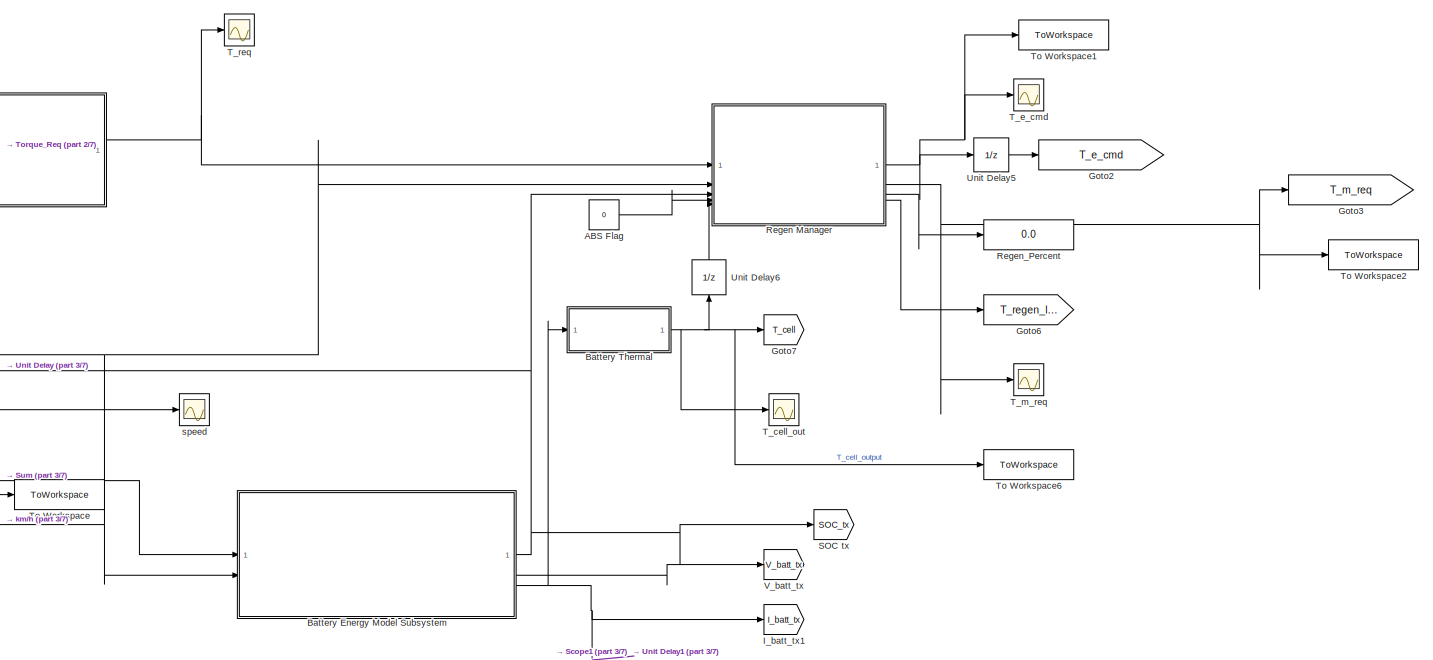
[diagram: root canvas - part 1/7, top right region]
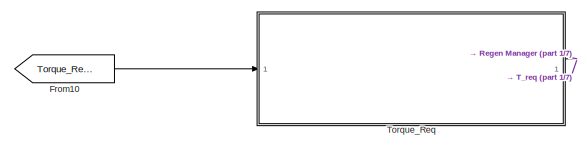
[diagram: root canvas - part 2/7, top center region]
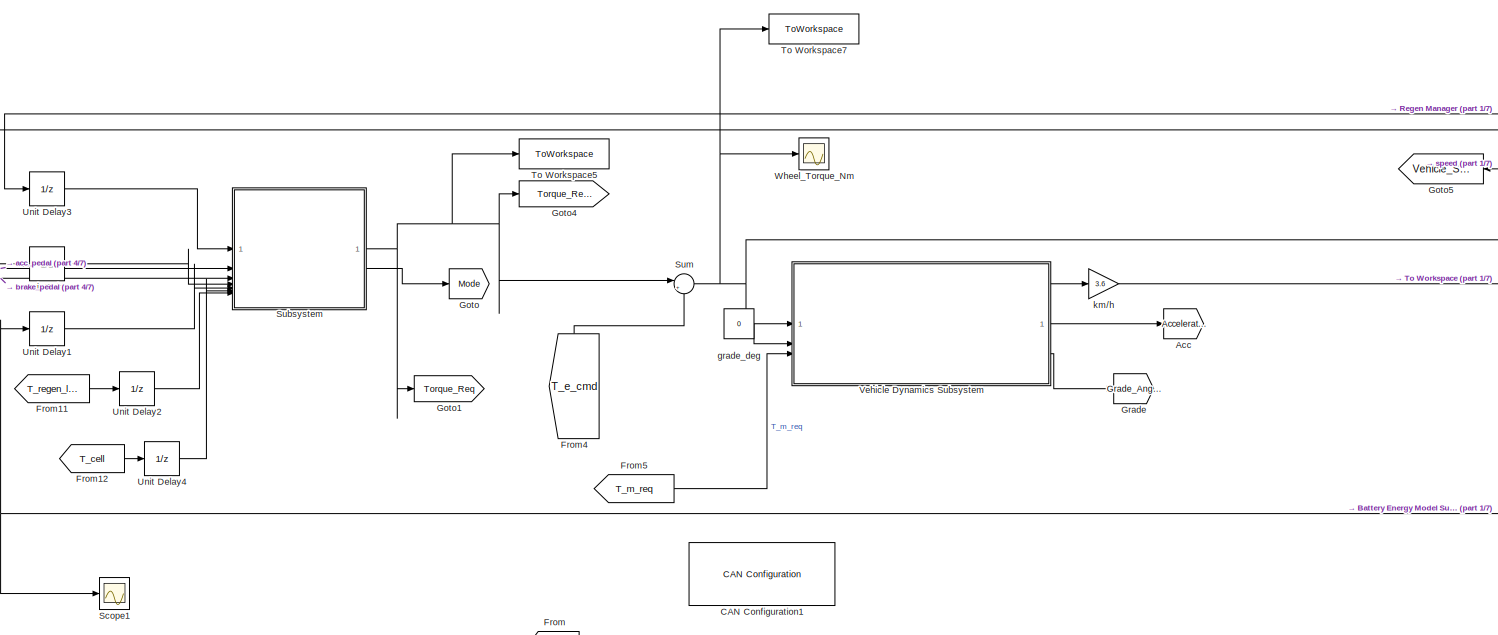
[diagram: root canvas - part 3/7, middle left region]
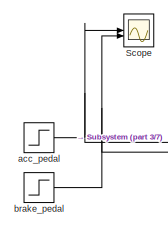
[diagram: root canvas - part 4/7, middle left region]
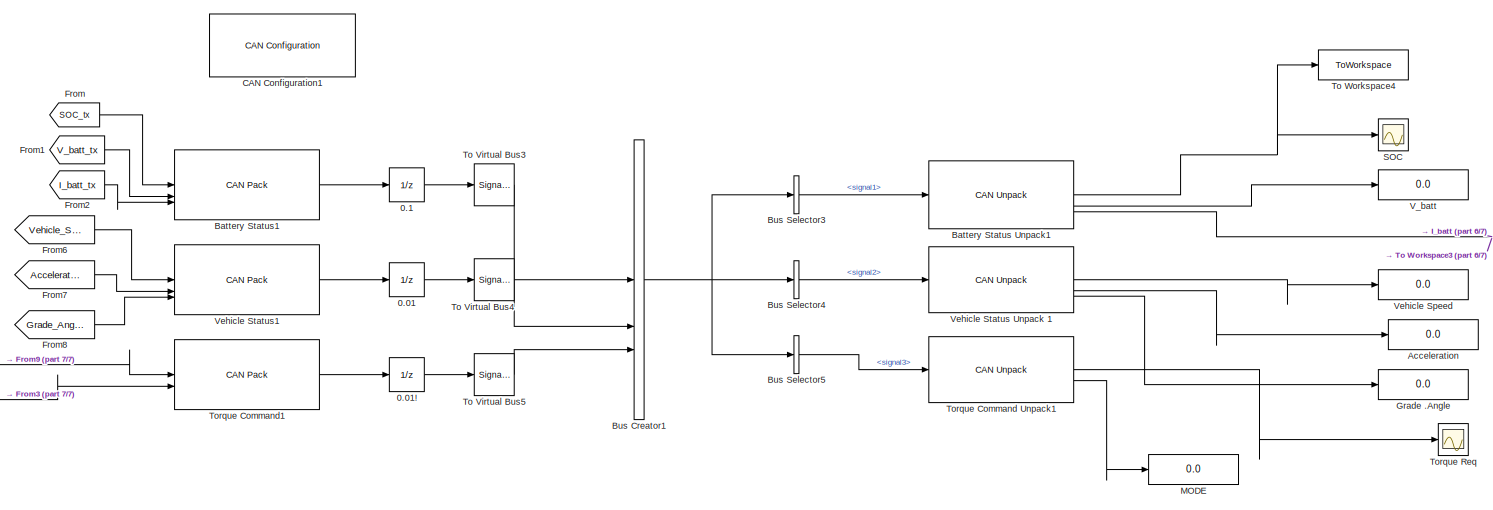
[diagram: root canvas - part 5/7, bottom center region]
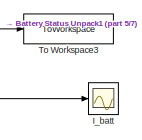
[diagram: root canvas - part 6/7, bottom right region]
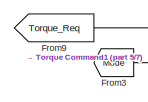
[diagram: root canvas - part 7/7, bottom left region]
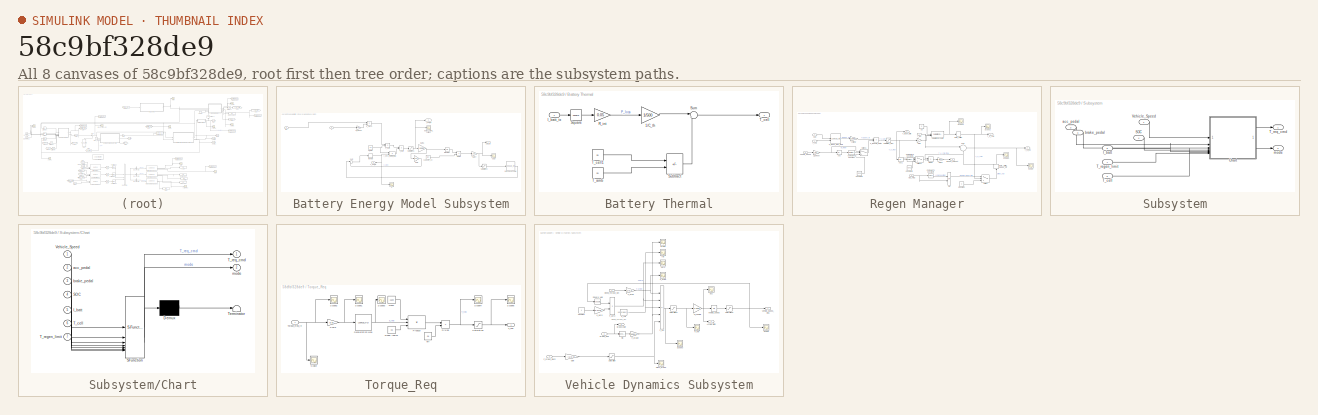
[diagram: thumbnail index - all 8 canvases of the model, root first then tree order]
MODEL slx_58c9bf328de9
KIND model
CONFIG AbsTol = auto
CONFIG EnableMultiTasking = off
CONFIG FixedStep = auto
CONFIG MaxStep = 0.1
CONFIG MinStep = 1e-4
CONFIG RelTol = 1e-2
CONFIG SampleTimeConstraint = Unconstrained
CONFIG SolverName = ode23tb
CONFIG StartTime = 0.0
CONFIG StopTime = 300
BLOCK [UnitDelay] 0.01
  HasFrameUpgradeWarning = on
  InitialCondition = 0.01
  SampleTime = -1
BLOCK [UnitDelay] 0.01!
  HasFrameUpgradeWarning = on
  InitialCondition = 0.1
  SampleTime = -1
BLOCK [UnitDelay] 0.1
  HasFrameUpgradeWarning = on
  InitialCondition = 0.1
  SampleTime = -1
BLOCK [Constant] ABS Flag
  Value = 0
BLOCK [Goto] Acc
  GotoTag = Acceleration
BLOCK [Display] Acceleration
  Decimation = 1
BLOCK [SubSystem] Battery Energy Model Subsystem
BLOCK [Lookup_n-D] Battery Energy Model Subsystem/1-D Lookup Table
  BreakpointsForDimension1 = [10 20 40 60 80 100]
  InputPortMap = u0
  InternalRulePriority = Speed
  NumberOfTableDimensions = 1
  RndMeth = Simplest
  Table = [325 332 342 350 356 360]
BLOCK [Gain] Battery Energy Model Subsystem/1//r_wheel
  Gain = 1/0.3
BLOCK [Inport] Battery Energy Model Subsystem/2
  Port = 2
BLOCK [Gain] Battery Energy Model Subsystem/Gain
  Gain = 0.05
BLOCK [Gain] Battery Energy Model Subsystem/Gain6
  Gain = -1/3600
BLOCK [Gain] Battery Energy Model Subsystem/Gain7
  Gain = 100
BLOCK [Product] Battery Energy Model Subsystem/I_batt
  Inputs = */
  RndMeth = Zero
  SaturateOnIntegerOverflow = on
BLOCK [Outport] Battery Energy Model Subsystem/I_batt_tx
  Port = 3
BLOCK [Inport] Battery Energy Model Subsystem/In1
BLOCK [Integrator] Battery Energy Model Subsystem/Integrator
  InitialCondition = 80
  LimitOutput = on
  LowerSaturationLimit = 0
  UpperSaturationLimit = 180
  ZeroCross = off
BLOCK [Memory] Battery Energy Model Subsystem/Memory
  InitialCondition = 0.01
BLOCK [Product] Battery Energy Model Subsystem/P_batt
  Inputs = */
BLOCK [Product] Battery Energy Model Subsystem/P_mech
BLOCK [Scope] Battery Energy Model Subsystem/SOC
  Floating = off
  NumInputPorts = 1
  ScopeSpecificationString = Simulink.scopes.TimeScopeBlockCfg('CurrentConfiguration', extmgr.ConfigurationSet(extmgr.Configuration('Core','General UI',true),extmgr.Configuration('Core','Source UI',true),extmgr.Configuration('Sources','WiredSimulink',true,'DataLoggingVariableName','ScopeData1'),extmgr.Configuration('Visuals','Time Domain',true,'SerializedDisplays',{struct('MinYLimReal','40.63093','MaxYLimReal','44.86822','YLa...<+1684ch>
BLOCK [Outport] Battery Energy Model Subsystem/SOC_tx
BLOCK [Saturate] Battery Energy Model Subsystem/Saturation1
  LowerLimit = -300
  UpperLimit = 300
  ZeroCross = off
BLOCK [Saturate] Battery Energy Model Subsystem/Saturation2
  LowerLimit = 0
  UpperLimit = 100
  ZeroCross = off
BLOCK [Sum] Battery Energy Model Subsystem/Sum
  Inputs = |+-
BLOCK [Scope] Battery Energy Model Subsystem/V
  Floating = off
  NumInputPorts = 1
  ScopeSpecificationString = Simulink.scopes.TimeScopeBlockCfg('CurrentConfiguration', extmgr.ConfigurationSet(extmgr.Configuration('Core','General UI',true),extmgr.Configuration('Core','Source UI',true),extmgr.Configuration('Sources','WiredSimulink',true,'DataLoggingVariableName','ScopeData1'),extmgr.Configuration('Visuals','Time Domain',true,'SerializedDisplays',{struct('MinYLimReal','-42.32209','MaxYLimReal','380.99877','Y...<+1408ch>
BLOCK [Outport] Battery Energy Model Subsystem/V_batt_tx
  NameLocation = top
  Port = 2
BLOCK [Product] Battery Energy Model Subsystem/V_term*eff_total
BLOCK [Scope] Battery Energy Model Subsystem/batt_system_current
  Floating = off
  NumInputPorts = 1
  ScopeSpecificationString = Simulink.scopes.TimeScopeBlockCfg('CurrentConfiguration', extmgr.ConfigurationSet(extmgr.Configuration('Core','General UI',true),extmgr.Configuration('Core','Source UI',true),extmgr.Configuration('Sources','WiredSimulink',true,'DataLoggingVariableName','ScopeData1'),extmgr.Configuration('Visuals','Time Domain',true,'SerializedDisplays',{struct('MinYLimReal','-144.0226','MaxYLimReal','16.00251','YL...<+1411ch>
BLOCK [Constant] Battery Energy Model Subsystem/capacity_Ah
  Value = 180
BLOCK [Product] Battery Energy Model Subsystem/divide
  Inputs = */
  RndMeth = Zero
  SaturateOnIntegerOverflow = on
BLOCK [Constant] Battery Energy Model Subsystem/eff_total
  Value = 0.9
BLOCK [Reference] Battery Status Unpack1  REF=canmsglib/CAN Unpack
  LibrarySourceBlock = canlib/CAN Unpack
  SourceBlock = canmsglib/CAN Unpack
  SourceType = CAN Unpack
BLOCK [Reference] Battery Status1  REF=canmsglib/CAN Pack
  LibrarySourceBlock = canlib/CAN Pack
  SourceBlock = canmsglib/CAN Pack
  SourceType = CAN Pack
BLOCK [SubSystem] Battery Thermal
BLOCK [Gain] Battery Thermal/1//C_th
  Gain = 1/500
BLOCK [Inport] Battery Thermal/I_batt_tx
BLOCK [Gain] Battery Thermal/R_int
  Gain = 0.05
BLOCK [Math] Battery Thermal/Square
  Operator = square
BLOCK [Sum] Battery Thermal/Subtract
  IconShape = rectangular
  Inputs = +-
BLOCK [Sum] Battery Thermal/Sum
  Inputs = |+-
BLOCK [Constant] Battery Thermal/T_amb
  Value = 20
BLOCK [Outport] Battery Thermal/T_cell
BLOCK [Constant] Battery Thermal/T_cell1
  Value = 25
BLOCK [BusCreator] Bus Creator1
  DisplayOption = bar
  InheritFromInputs = on
  Inputs = 3
BLOCK [BusSelector] Bus Selector3
  OutputSignals = signal1
BLOCK [BusSelector] Bus Selector4
  OutputSignals = signal2
BLOCK [BusSelector] Bus Selector5
  OutputSignals = signal3
BLOCK [Reference] CAN Configuration1  REF=canlib/CAN Configuration
  SourceBlock = canlib/CAN Configuration
  SourceType = CAN Configuration
BLOCK [From] From
  GotoTag = SOC_tx
BLOCK [From] From1
  GotoTag = V_batt_tx
BLOCK [From] From10
  GotoTag = Torque_Req_in
BLOCK [From] From11
  GotoTag = T_regen_limit
BLOCK [From] From12
  GotoTag = T_cell
BLOCK [From] From2
  GotoTag = I_batt_tx
BLOCK [From] From3
  GotoTag = Mode
BLOCK [From] From4
  GotoTag = T_e_cmd
  NameLocation = right
BLOCK [From] From5
  GotoTag = T_m_req
BLOCK [From] From6
  GotoTag = Vehicle_Speed
BLOCK [From] From7
  GotoTag = Acceleration
BLOCK [From] From8
  GotoTag = Grade_Angle
BLOCK [From] From9
  GotoTag = Torque_Req
BLOCK [Goto] Goto
  GotoTag = Mode
BLOCK [Goto] Goto1
  GotoTag = Torque_Req
BLOCK [Goto] Goto2
  GotoTag = T_e_cmd
BLOCK [Goto] Goto3
  GotoTag = T_m_req
BLOCK [Goto] Goto4
  GotoTag = Torque_Req_in
BLOCK [Goto] Goto5
  GotoTag = Vehicle_Speed
  NameLocation = top
BLOCK [Goto] Goto6
  GotoTag = T_regen_limit
BLOCK [Goto] Goto7
  GotoTag = T_cell
BLOCK [Goto] Grade
  GotoTag = Grade_Angle
BLOCK [Display] Grade .Angle
  Decimation = 1
BLOCK [Scope] I_batt
  Floating = off
  NumInputPorts = 1
  ScopeSpecificationString = Simulink.scopes.TimeScopeBlockCfg('CurrentConfiguration', extmgr.ConfigurationSet(extmgr.Configuration('Core','General UI',true),extmgr.Configuration('Core','Source UI',true),extmgr.Configuration('Sources','WiredSimulink',true,'DataLoggingVariableName','ScopeData3'),extmgr.Configuration('Visuals','Time Domain',true,'SerializedDisplays',{struct('MinYLimReal','-234.825','MaxYLimReal','359.425','YLab...<+1420ch>
BLOCK [Goto] I_batt_tx1
  GotoTag = I_batt_tx
BLOCK [Display] MODE
  Decimation = 1
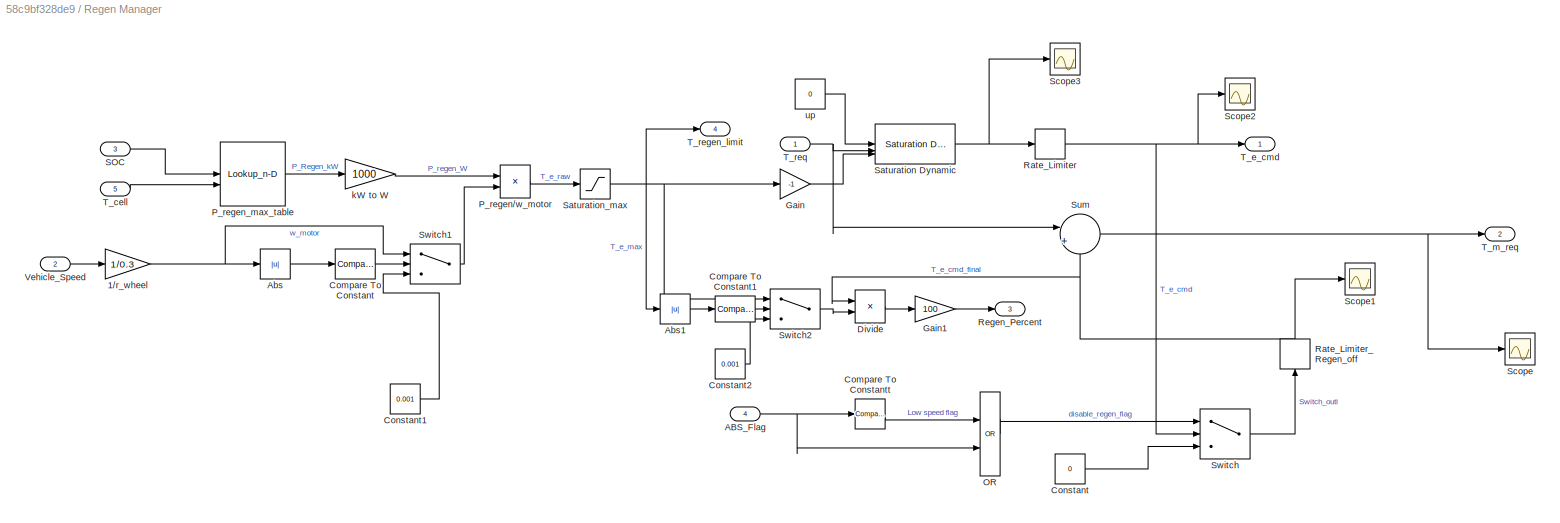
BLOCK [SubSystem] Regen Manager
BLOCK [Gain] Regen Manager/1//r_wheel
  Gain = 1/0.3
BLOCK [Inport] Regen Manager/ABS_Flag
  Port = 4
BLOCK [Abs] Regen Manager/Abs
  SaturateOnIntegerOverflow = off
  ZeroCross = off
BLOCK [Abs] Regen Manager/Abs1
  SaturateOnIntegerOverflow = off
  ZeroCross = off
BLOCK [Reference] Regen Manager/Compare To Constant  REF=simulink/Logic and Bit
Operations/Compare
To Constant
  SourceBlock = simulink/Logic and Bit\nOperations/Compare\nTo Constant
  SourceType = Compare To Constant
BLOCK [Reference] Regen Manager/Compare To Constant1  REF=simulink/Logic and Bit
Operations/Compare
To Constant
  SourceBlock = simulink/Logic and Bit\nOperations/Compare\nTo Constant
  SourceType = Compare To Constant
BLOCK [Reference] Regen Manager/Compare To Constantt  REF=simulink/Logic and Bit
Operations/Compare
To Constant
  SourceBlock = simulink/Logic and Bit\nOperations/Compare\nTo Constant
  SourceType = Compare To Constant
BLOCK [Constant] Regen Manager/Constant
  Value = 0
BLOCK [Constant] Regen Manager/Constant1
  Value = 0.001
BLOCK [Constant] Regen Manager/Constant2
  Value = 0.001
BLOCK [Product] Regen Manager/Divide
  RndMeth = Zero
  SaturateOnIntegerOverflow = on
BLOCK [Gain] Regen Manager/Gain
  Gain = -1
BLOCK [Gain] Regen Manager/Gain1
  Gain = 100
BLOCK [Logic] Regen Manager/OR
  AllPortsSameDT = off
  IconShape = distinctive
  Operator = OR
  OutDataTypeStr = boolean
BLOCK [Product] Regen Manager/P_regen//w_motor
  RndMeth = Zero
  SaturateOnIntegerOverflow = on
BLOCK [Lookup_n-D] Regen Manager/P_regen_max_table
  BreakpointsForDimension1 = [0 20 40 60 80 95 100] % SOC
  BreakpointsForDimension2 = [-10 0 10 20 30 40 50]    % T_cell
  InputPortMap = u0,u1
  InternalRulePriority = Speed
  RndMeth = Simplest
  Table = [ 5  10  15  20  25  12   0;  \n  8  15  25  35  45  20   0;  \n 12  30  45  60  70  28   0;   \n 15  40  60  80  90  35   0;   \n 15  40  60  80  90  35   0;   \n 10  30  45  60  70  28   0;   \n  5  15  25  35  45  20   0]
BLOCK [RateLimiter] Regen Manager/Rate_Limiter
  FallingSlewLimit = -3000
  RisingSlewLimit = 3000
  SampleTimeMode = inherited
BLOCK [RateLimiter] Regen Manager/Rate_Limiter_Regen_off
  FallingSlewLimit = -2000
  NameLocation = right
  RisingSlewLimit = 2000
  SampleTimeMode = inherited
BLOCK [Outport] Regen Manager/Regen_Percent
  Port = 3
BLOCK [Inport] Regen Manager/SOC
  Port = 3
BLOCK [Reference] Regen Manager/Saturation Dynamic  REF=simulink/Discontinuities/Saturation
Dynamic
  SourceBlock = simulink/Discontinuities/Saturation\nDynamic
  SourceType = Saturation Dynamic
BLOCK [Saturate] Regen Manager/Saturation_max
  LowerLimit = 0
  UpperLimit = 1500
  ZeroCross = off
BLOCK [Scope] Regen Manager/Scope
  Floating = off
  NumInputPorts = 1
  ScopeSpecificationString = Simulink.scopes.TimeScopeBlockCfg('CurrentConfiguration', extmgr.ConfigurationSet(extmgr.Configuration('Core','General UI',true),extmgr.Configuration('Core','Source UI',true),extmgr.Configuration('Sources','WiredSimulink',true,'DataLoggingVariableName','ScopeData2'),extmgr.Configuration('Visuals','Time Domain',true,'SerializedDisplays',{struct('MinYLimReal','-375.00000','MaxYLimReal','375.00000','...<+1407ch>
BLOCK [Scope] Regen Manager/Scope1
  Floating = off
  NumInputPorts = 1
  ScopeSpecificationString = Simulink.scopes.TimeScopeBlockCfg('CurrentConfiguration', extmgr.ConfigurationSet(extmgr.Configuration('Core','General UI',true),extmgr.Configuration('Core','Source UI',true),extmgr.Configuration('Sources','WiredSimulink',true,'DataLoggingVariableName','ScopeData1'),extmgr.Configuration('Visuals','Time Domain',true,'SerializedDisplays',{struct('MinYLimReal','-1.00000','MaxYLimReal','1.00000','YLab...<+1372ch>
BLOCK [Scope] Regen Manager/Scope2
  Floating = off
  NumInputPorts = 1
  ScopeSpecificationString = Simulink.scopes.TimeScopeBlockCfg('CurrentConfiguration', extmgr.ConfigurationSet(extmgr.Configuration('Core','General UI',true),extmgr.Configuration('Core','Source UI',true),extmgr.Configuration('Sources','WiredSimulink',true,'DataLoggingVariableName','ScopeData2'),extmgr.Configuration('Visuals','Time Domain',true,'SerializedDisplays',{struct('MinYLimReal','-33.75','MaxYLimReal','3.75','YLabelRea...<+1352ch>
BLOCK [Scope] Regen Manager/Scope3
  Floating = off
  NumInputPorts = 1
  ScopeSpecificationString = Simulink.scopes.TimeScopeBlockCfg('CurrentConfiguration', extmgr.ConfigurationSet(extmgr.Configuration('Core','General UI',true),extmgr.Configuration('Core','Source UI',true),extmgr.Configuration('Sources','WiredSimulink',true,'DataLoggingVariableName','ScopeData3'),extmgr.Configuration('Visuals','Time Domain',true,'SerializedDisplays',{struct('MinYLimReal','-41.20213','MaxYLimReal','4.57801','YLa...<+1381ch>
BLOCK [Sum] Regen Manager/Sum
  Inputs = |+-
BLOCK [Switch] Regen Manager/Switch
  Criteria = u2 > Threshold
  InputSameDT = off
  SaturateOnIntegerOverflow = off
BLOCK [Switch] Regen Manager/Switch1
  Criteria = u2 > Threshold
  InputSameDT = off
  SaturateOnIntegerOverflow = off
  Threshold = 0.001
BLOCK [Switch] Regen Manager/Switch2
  Criteria = u2 > Threshold
  InputSameDT = off
  SaturateOnIntegerOverflow = off
  Threshold = 0.001
BLOCK [Inport] Regen Manager/T_cell
  Port = 5
BLOCK [Outport] Regen Manager/T_e_cmd
BLOCK [Outport] Regen Manager/T_m_req
  Port = 2
BLOCK [Outport] Regen Manager/T_regen_limit
  Port = 4
BLOCK [Inport] Regen Manager/T_req
BLOCK [Inport] Regen Manager/Vehicle_Speed
  Port = 2
BLOCK [Gain] Regen Manager/kW to W
  Gain = 1000
BLOCK [Constant] Regen Manager/up
  Value = 0
BLOCK [Display] Regen_Percent
  Decimation = 1
BLOCK [Scope] SOC
  Floating = off
  NumInputPorts = 1
  ScopeSpecificationString = Simulink.scopes.TimeScopeBlockCfg('CurrentConfiguration', extmgr.ConfigurationSet(extmgr.Configuration('Core','General UI',true),extmgr.Configuration('Core','Source UI',true),extmgr.Configuration('Sources','WiredSimulink',true,'DataLoggingVariableName','ScopeData5'),extmgr.Configuration('Visuals','Time Domain',true,'SerializedDisplays',{struct('MinYLimReal','25.54737','MaxYLimReal','46.01866','YLa...<+1464ch>
BLOCK [Goto] SOC tx
  GotoTag = SOC_tx
BLOCK [Scope] Scope
  Floating = off
  NumInputPorts = 2
  ScopeSpecificationString = Simulink.scopes.TimeScopeBlockCfg('CurrentConfiguration', extmgr.ConfigurationSet(extmgr.Configuration('Core','General UI',true),extmgr.Configuration('Core','Source UI',true),extmgr.Configuration('Sources','WiredSimulink',true,'DataLoggingVariableName','ScopeData1'),extmgr.Configuration('Visuals','Time Domain',true,'SerializedDisplays',{struct('MinYLimReal','-37.5','MaxYLimReal','337.5','YLabelRea...<+1397ch>
BLOCK [Scope] Scope1
  Floating = off
  NumInputPorts = 1
  ScopeSpecificationString = Simulink.scopes.TimeScopeBlockCfg('CurrentConfiguration', extmgr.ConfigurationSet(extmgr.Configuration('Core','General UI',true),extmgr.Configuration('Core','Source UI',true),extmgr.Configuration('Sources','WiredSimulink',true,'DataLoggingVariableName','ScopeData2'),extmgr.Configuration('Visuals','Time Domain',true,'SerializedDisplays',{struct('MinYLimReal','-225.6366','MaxYLimReal','358.40407','Y...<+1403ch>
BLOCK [SubSystem] Subsystem
BLOCK [SubSystem] Subsystem/Chart
  ErrorFcn = Stateflow.Translate.translate
  PermitHierarchicalResolution = ExplicitOnly
  SFBlockType = Chart
  TreatAsAtomicUnit = on
BLOCK [Demux] Subsystem/Chart/ Demux 
  Outputs = 1
BLOCK [S-Function] Subsystem/Chart/ SFunction 
  EnableBusSupport = on
  FunctionName = sf_sfun
  PortCounts = [7 3]
  SFcnIsStateOwnerBlock = off
  SFunctionDeploymentMode = off
  Tag = Stateflow S-Function 3
BLOCK [Terminator] Subsystem/Chart/ Terminator 
BLOCK [Inport] Subsystem/Chart/I_batt
  Port = 5
BLOCK [Inport] Subsystem/Chart/SOC
  Port = 4
BLOCK [Inport] Subsystem/Chart/T_cell
  Port = 6
BLOCK [Inport] Subsystem/Chart/T_regen_limit
  Port = 7
BLOCK [Outport] Subsystem/Chart/T_req_cmd
BLOCK [Inport] Subsystem/Chart/Vehicle_Speed
BLOCK [Inport] Subsystem/Chart/acc_pedal
  Port = 2
BLOCK [Inport] Subsystem/Chart/brake_pedal
  Port = 3
BLOCK [Outport] Subsystem/Chart/mode
  Port = 2
BLOCK [Inport] Subsystem/I_batt
  Port = 5
BLOCK [Inport] Subsystem/SOC
  Port = 4
BLOCK [Inport] Subsystem/T_cell
  Port = 6
BLOCK [Inport] Subsystem/T_regen_limit
  Port = 7
BLOCK [Outport] Subsystem/T_req_cmd
BLOCK [Inport] Subsystem/Vehicle_Speed
BLOCK [Inport] Subsystem/acc_pedal
  Port = 2
BLOCK [Inport] Subsystem/brake_pedal
  Port = 3
BLOCK [Outport] Subsystem/mode
  Port = 2
BLOCK [Sum] Sum
  Inputs = |++
BLOCK [Scope] T_cell_out
  Floating = off
  NumInputPorts = 1
  ScopeSpecificationString = Simulink.scopes.TimeScopeBlockCfg('CurrentConfiguration', extmgr.ConfigurationSet(extmgr.Configuration('Core','General UI',true),extmgr.Configuration('Core','Source UI',true),extmgr.Configuration('Sources','WiredSimulink',true,'DataLoggingVariableName','ScopeData1'),extmgr.Configuration('Visuals','Time Domain',true,'SerializedDisplays',{struct('MinYLimReal','-6.125','MaxYLimReal','5.125','YLabelRe...<+1360ch>
BLOCK [Scope] T_e_cmd
  Floating = off
  NumInputPorts = 1
  ScopeSpecificationString = Simulink.scopes.TimeScopeBlockCfg('CurrentConfiguration', extmgr.ConfigurationSet(extmgr.Configuration('Core','General UI',true),extmgr.Configuration('Core','Source UI',true),extmgr.Configuration('Sources','WiredSimulink',true,'DataLoggingVariableName','ScopeData7'),extmgr.Configuration('Visuals','Time Domain',true,'SerializedDisplays',{struct('MinYLimReal','-33.75','MaxYLimReal','3.75','YLabelRea...<+1401ch>
BLOCK [Scope] T_m_req
  Floating = off
  NumInputPorts = 1
  ScopeSpecificationString = Simulink.scopes.TimeScopeBlockCfg('CurrentConfiguration', extmgr.ConfigurationSet(extmgr.Configuration('Core','General UI',true),extmgr.Configuration('Core','Source UI',true),extmgr.Configuration('Sources','WiredSimulink',true,'DataLoggingVariableName','ScopeData8'),extmgr.Configuration('Visuals','Time Domain',true,'SerializedDisplays',{struct('MinYLimReal','-375.00000','MaxYLimReal','375.00000','...<+1487ch>
BLOCK [Scope] T_req
  Floating = off
  NumInputPorts = 1
  ScopeSpecificationString = Simulink.scopes.TimeScopeBlockCfg('CurrentConfiguration', extmgr.ConfigurationSet(extmgr.Configuration('Core','General UI',true),extmgr.Configuration('Core','Source UI',true),extmgr.Configuration('Sources','WiredSimulink',true,'DataLoggingVariableName','ScopeData1'),extmgr.Configuration('Visuals','Time Domain',true,'SerializedDisplays',{struct('MinYLimReal','-375.00000','MaxYLimReal','375.00000','...<+1414ch>
BLOCK [SignalConversion] To Virtual Bus3
  ConversionOutput = Nonvirtual bus
  OverrideOpt = off
BLOCK [SignalConversion] To Virtual Bus4
  ConversionOutput = Nonvirtual bus
  OverrideOpt = off
BLOCK [SignalConversion] To Virtual Bus5
  ConversionOutput = Nonvirtual bus
  OverrideOpt = off
BLOCK [ToWorkspace] To Workspace
  FixptAsFi = on
  MaxDataPoints = inf
  SampleTime = -1
  VariableName = speed
BLOCK [ToWorkspace] To Workspace1
  FixptAsFi = on
  MaxDataPoints = inf
  SampleTime = -1
  VariableName = T_e_cmd
BLOCK [ToWorkspace] To Workspace2
  FixptAsFi = on
  MaxDataPoints = inf
  SampleTime = -1
  VariableName = T_m_req
BLOCK [ToWorkspace] To Workspace3
  FixptAsFi = on
  MaxDataPoints = inf
  SampleTime = -1
  VariableName = I_batt
BLOCK [ToWorkspace] To Workspace4
  FixptAsFi = on
  MaxDataPoints = inf
  SampleTime = -1
  VariableName = SOC
BLOCK [ToWorkspace] To Workspace5
  FixptAsFi = on
  MaxDataPoints = inf
  SampleTime = -1
  VariableName = T_req_cmd
BLOCK [ToWorkspace] To Workspace6
  FixptAsFi = on
  MaxDataPoints = inf
  SampleTime = -1
  VariableName = Tcell
BLOCK [ToWorkspace] To Workspace7
  FixptAsFi = on
  MaxDataPoints = inf
  SampleTime = -1
  VariableName = Wheel_Torque_Nm
BLOCK [Reference] Torque Command Unpack1  REF=canmsglib/CAN Unpack
  LibrarySourceBlock = canlib/CAN Unpack
  SourceBlock = canmsglib/CAN Unpack
  SourceType = CAN Unpack
BLOCK [Reference] Torque Command1  REF=canmsglib/CAN Pack
  LibrarySourceBlock = canlib/CAN Pack
  SourceBlock = canmsglib/CAN Pack
  SourceType = CAN Pack
BLOCK [Scope] Torque Req
  Floating = off
  NumInputPorts = 1
  ScopeSpecificationString = Simulink.scopes.TimeScopeBlockCfg('CurrentConfiguration', extmgr.ConfigurationSet(extmgr.Configuration('Core','General UI',true),extmgr.Configuration('Core','Source UI',true),extmgr.Configuration('Sources','WiredSimulink',true,'DataLoggingVariableName','ScopeData9'),extmgr.Configuration('Visuals','Time Domain',true,'SerializedDisplays',{struct('MinYLimReal','-215.00000','MaxYLimReal','1135.00000',...<+1467ch>
BLOCK [SubSystem] Torque_Req
BLOCK [Lookup_n-D] Torque_Req/Deceleration Map
  BreakpointsForDimension1 = [0 0.2 0.5 1.2 2.0 3.0 4.0]
  InputPortMap = u0
  InternalRulePriority = Speed
  NumberOfTableDimensions = 1
  RndMeth = Simplest
  Table = [0 10 20 40 60 80 100]
BLOCK [Product] Torque_Req/Divide
  RndMeth = Zero
  SaturateOnIntegerOverflow = on
BLOCK [Product] Torque_Req/Product
  Inputs = 3
BLOCK [Saturate] Torque_Req/Saturation
  LowerLimit = -300
  UpperLimit = 300
  ZeroCross = off
BLOCK [Gain] Torque_Req/Scale
  Gain = 0.01
BLOCK [Scope] Torque_Req/Scope
  Floating = off
  NumInputPorts = 1
  ScopeSpecificationString = Simulink.scopes.TimeScopeBlockCfg('CurrentConfiguration', extmgr.ConfigurationSet(extmgr.Configuration('Core','General UI',true),extmgr.Configuration('Core','Source UI',true),extmgr.Configuration('Sources','WiredSimulink',true,'DataLoggingVariableName','ScopeData1'),extmgr.Configuration('Visuals','Time Domain',true,'SerializedDisplays',{struct('MinYLimReal','-456.1875','MaxYLimReal','106.1875','YL...<+1411ch>
BLOCK [Scope] Torque_Req/Scope1
  Floating = off
  NumInputPorts = 1
  ScopeSpecificationString = Simulink.scopes.TimeScopeBlockCfg('CurrentConfiguration', extmgr.ConfigurationSet(extmgr.Configuration('Core','General UI',true),extmgr.Configuration('Core','Source UI',true),extmgr.Configuration('Sources','WiredSimulink',true,'DataLoggingVariableName','ScopeData1'),extmgr.Configuration('Visuals','Time Domain',true,'SerializedDisplays',{struct('MinYLimReal','-1.275','MaxYLimReal','3.475','YLabelRe...<+1385ch>
BLOCK [Scope] Torque_Req/Scope2
  Floating = off
  NumInputPorts = 1
  ScopeSpecificationString = Simulink.scopes.TimeScopeBlockCfg('CurrentConfiguration', extmgr.ConfigurationSet(extmgr.Configuration('Core','General UI',true),extmgr.Configuration('Core','Source UI',true),extmgr.Configuration('Sources','WiredSimulink',true,'DataLoggingVariableName','ScopeData2'),extmgr.Configuration('Visuals','Time Domain',true,'SerializedDisplays',{struct('MinYLimReal','-127.5','MaxYLimReal','347.5','YLabelRe...<+1362ch>
BLOCK [Scope] Torque_Req/Scope3
  Floating = off
  NumInputPorts = 1
  ScopeSpecificationString = Simulink.scopes.TimeScopeBlockCfg('CurrentConfiguration', extmgr.ConfigurationSet(extmgr.Configuration('Core','General UI',true),extmgr.Configuration('Core','Source UI',true),extmgr.Configuration('Sources','WiredSimulink',true,'DataLoggingVariableName','ScopeData3'),extmgr.Configuration('Visuals','Time Domain',true,'SerializedDisplays',{struct('MinYLimReal','-55.00000','MaxYLimReal','95.00000','YL...<+1403ch>
BLOCK [Scope] Torque_Req/Scope4
  Floating = off
  NumInputPorts = 1
  ScopeSpecificationString = Simulink.scopes.TimeScopeBlockCfg('CurrentConfiguration', extmgr.ConfigurationSet(extmgr.Configuration('Core','General UI',true),extmgr.Configuration('Core','Source UI',true),extmgr.Configuration('Sources','WiredSimulink',true,'DataLoggingVariableName','ScopeData4'),extmgr.Configuration('Visuals','Time Domain',true,'SerializedDisplays',{struct('MinYLimReal','-23760.00000','MaxYLimReal','41040.0000...<+1723ch>
BLOCK [Scope] Torque_Req/Scope5
  Floating = off
  NumInputPorts = 1
  ScopeSpecificationString = Simulink.scopes.TimeScopeBlockCfg('CurrentConfiguration', extmgr.ConfigurationSet(extmgr.Configuration('Core','General UI',true),extmgr.Configuration('Core','Source UI',true),extmgr.Configuration('Sources','WiredSimulink',true,'DataLoggingVariableName','ScopeData5'),extmgr.Configuration('Visuals','Time Domain',true,'SerializedDisplays',{struct('MinYLimReal','-375.00000','MaxYLimReal','375.00000','...<+1712ch>
BLOCK [Outport] Torque_Req/T_req
BLOCK [Inport] Torque_Req/Torque_Req_in
BLOCK [Constant] Torque_Req/eff
  Value = 0.9
BLOCK [Constant] Torque_Req/mass
  Value = 1600
BLOCK [Constant] Torque_Req/wheel radius
  Value = 0.3
BLOCK [UnitDelay] Unit Delay
  HasFrameUpgradeWarning = on
  SampleTime = 0.01
BLOCK [UnitDelay] Unit Delay1
  HasFrameUpgradeWarning = on
  SampleTime = 0.01
BLOCK [UnitDelay] Unit Delay2
  HasFrameUpgradeWarning = on
  SampleTime = 0.01
BLOCK [UnitDelay] Unit Delay3
  HasFrameUpgradeWarning = on
  SampleTime = 0.01
BLOCK [UnitDelay] Unit Delay4
  HasFrameUpgradeWarning = on
  SampleTime = 0.01
BLOCK [UnitDelay] Unit Delay5
  HasFrameUpgradeWarning = on
  SampleTime = 0.01
BLOCK [UnitDelay] Unit Delay6
  HasFrameUpgradeWarning = on
  InitialCondition = 0.01
  NameLocation = right
  SampleTime = -1
BLOCK [Display] V_batt
  Decimation = 1
BLOCK [Goto] V_batt_tx
  GotoTag = V_batt_tx
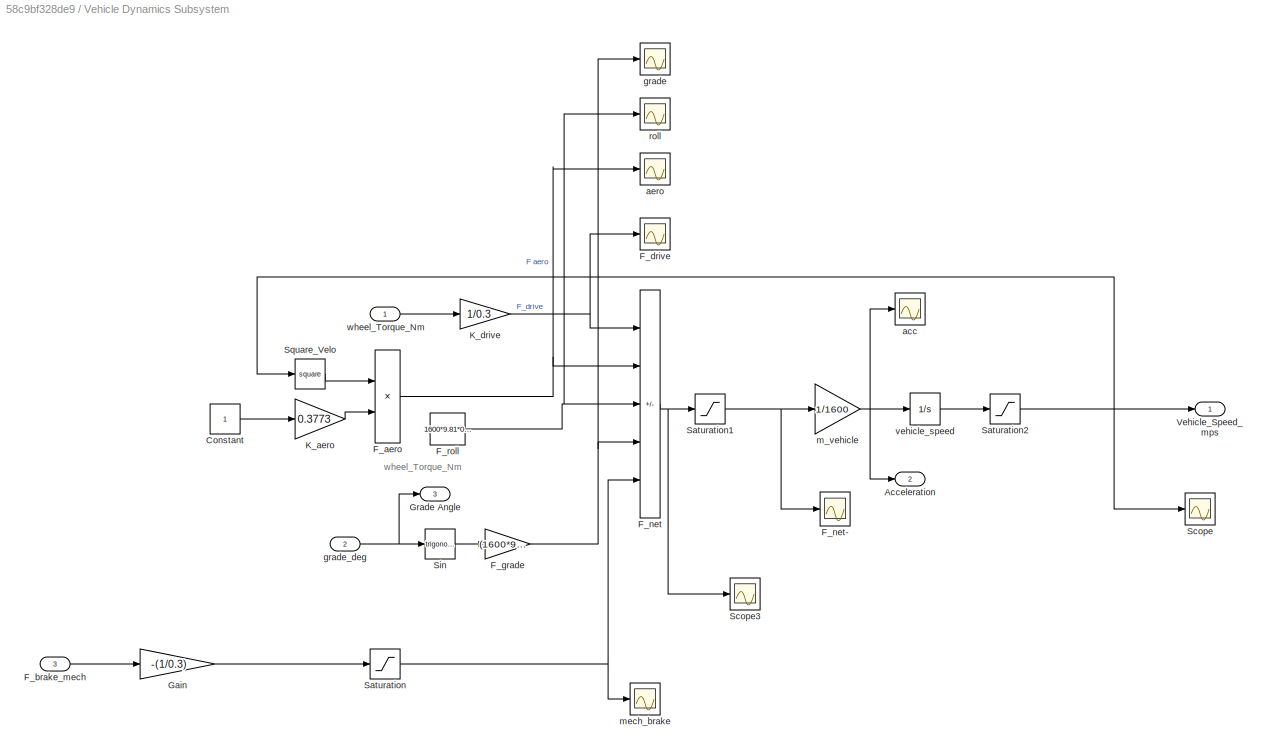
BLOCK [SubSystem] Vehicle Dynamics Subsystem
BLOCK [Outport] Vehicle Dynamics Subsystem/Acceleration
  Port = 2
BLOCK [Constant] Vehicle Dynamics Subsystem/Constant
BLOCK [Product] Vehicle Dynamics Subsystem/F_aero
BLOCK [Inport] Vehicle Dynamics Subsystem/F_brake_mech
  Port = 3
BLOCK [Scope] Vehicle Dynamics Subsystem/F_drive
  Floating = off
  NumInputPorts = 1
  ScopeSpecificationString = Simulink.scopes.TimeScopeBlockCfg('CurrentConfiguration', extmgr.ConfigurationSet(extmgr.Configuration('Core','General UI',true),extmgr.Configuration('Core','Source UI',true),extmgr.Configuration('Sources','WiredSimulink',true,'DataLoggingVariableName','ScopeData1'),extmgr.Configuration('Visuals','Time Domain',true,'SerializedDisplays',{struct('MinYLimReal','-318.75','MaxYLimReal','35.41667','YLab...<+1399ch>
BLOCK [Gain] Vehicle Dynamics Subsystem/F_grade
  Gain = (1600*9.81)/100
BLOCK [Sum] Vehicle Dynamics Subsystem/F_net
  IconShape = rectangular
  Inputs = +----
BLOCK [Scope] Vehicle Dynamics Subsystem/F_net-
  Floating = off
  NumInputPorts = 1
  ScopeSpecificationString = Simulink.scopes.TimeScopeBlockCfg('CurrentConfiguration', extmgr.ConfigurationSet(extmgr.Configuration('Core','General UI',true),extmgr.Configuration('Core','Source UI',true),extmgr.Configuration('Sources','WiredSimulink',true),extmgr.Configuration('Visuals','Time Domain',true,'SerializedDisplays',{struct('MinYLimReal','-3381.7707','MaxYLimReal','3817.85558','YLabelReal','','MinYLimMag','  0.00000...<+1420ch>
BLOCK [Constant] Vehicle Dynamics Subsystem/F_roll
  Value = 1600*9.81*0.015
BLOCK [Gain] Vehicle Dynamics Subsystem/Gain
  Gain = -(1/0.3)
BLOCK [Outport] Vehicle Dynamics Subsystem/Grade Angle
  Port = 3
BLOCK [Gain] Vehicle Dynamics Subsystem/K_aero
  Gain = 0.3773
BLOCK [Gain] Vehicle Dynamics Subsystem/K_drive
  Gain = 1/0.3
BLOCK [Saturate] Vehicle Dynamics Subsystem/Saturation
  LowerLimit = 0
  UpperLimit = 10000
  ZeroCross = off
BLOCK [Saturate] Vehicle Dynamics Subsystem/Saturation1
  LowerLimit = -20000
  UpperLimit = 20000
  ZeroCross = off
BLOCK [Saturate] Vehicle Dynamics Subsystem/Saturation2
  LowerLimit = 0
  UpperLimit = 50
  ZeroCross = off
BLOCK [Scope] Vehicle Dynamics Subsystem/Scope
  Floating = off
  NumInputPorts = 1
  ScopeSpecificationString = Simulink.scopes.TimeScopeBlockCfg('CurrentConfiguration', extmgr.ConfigurationSet(extmgr.Configuration('Core','General UI',true),extmgr.Configuration('Core','Source UI',true),extmgr.Configuration('Sources','WiredSimulink',true,'DataLoggingVariableName','ScopeData1'),extmgr.Configuration('Visuals','Time Domain',true,'SerializedDisplays',{struct('MinYLimReal','-62.5','MaxYLimReal','62.5','YLabelReal...<+1352ch>
BLOCK [Scope] Vehicle Dynamics Subsystem/Scope3
  Floating = off
  NumInputPorts = 1
  ScopeSpecificationString = Simulink.scopes.TimeScopeBlockCfg('CurrentConfiguration', extmgr.ConfigurationSet(extmgr.Configuration('Core','General UI',true),extmgr.Configuration('Core','Source UI',true),extmgr.Configuration('Sources','WiredSimulink',true,'DataLoggingVariableName','ScopeData2'),extmgr.Configuration('Visuals','Time Domain',true,'SerializedDisplays',{struct('MinYLimReal','-3381.7707','MaxYLimReal','3817.85558',...<+1417ch>
BLOCK [Trigonometry] Vehicle Dynamics Subsystem/Sin
  OutputSignalType = real
BLOCK [Math] Vehicle Dynamics Subsystem/Square_Velo
  Operator = square
BLOCK [Outport] Vehicle Dynamics Subsystem/Vehicle_Speed_mps
BLOCK [Scope] Vehicle Dynamics Subsystem/acc
  Floating = off
  NumInputPorts = 1
  ScopeSpecificationString = Simulink.scopes.TimeScopeBlockCfg('CurrentConfiguration', extmgr.ConfigurationSet(extmgr.Configuration('Core','General UI',true),extmgr.Configuration('Core','Source UI',true),extmgr.Configuration('Sources','WiredSimulink',true,'DataLoggingVariableName','ScopeData1'),extmgr.Configuration('Visuals','Time Domain',true,'SerializedDisplays',{struct('MinYLimReal','-1.5135','MaxYLimReal','0.00467','YLabe...<+1364ch>
BLOCK [Scope] Vehicle Dynamics Subsystem/aero
  Floating = off
  NumInputPorts = 1
  ScopeSpecificationString = Simulink.scopes.TimeScopeBlockCfg('CurrentConfiguration', extmgr.ConfigurationSet(extmgr.Configuration('Core','General UI',true),extmgr.Configuration('Core','Source UI',true),extmgr.Configuration('Sources','WiredSimulink',true,'DataLoggingVariableName','ScopeData1'),extmgr.Configuration('Visuals','Time Domain',true,'SerializedDisplays',{struct('MinYLimReal','-117.90625','MaxYLimReal','1061.15625',...<+1414ch>
BLOCK [Scope] Vehicle Dynamics Subsystem/grade
  Floating = off
  NumInputPorts = 1
  ScopeSpecificationString = Simulink.scopes.TimeScopeBlockCfg('CurrentConfiguration', extmgr.ConfigurationSet(extmgr.Configuration('Core','General UI',true),extmgr.Configuration('Core','Source UI',true),extmgr.Configuration('Sources','WiredSimulink',true,'DataLoggingVariableName','ScopeData3'),extmgr.Configuration('Visuals','Time Domain',true,'SerializedDisplays',{struct('MinYLimReal','-1.00000','MaxYLimReal','1.00000','YLab...<+1434ch>
BLOCK [Inport] Vehicle Dynamics Subsystem/grade_deg
  Port = 2
BLOCK [Gain] Vehicle Dynamics Subsystem/m_vehicle
  Gain = 1/1600
BLOCK [Scope] Vehicle Dynamics Subsystem/mech_brake
  Floating = off
  NumInputPorts = 1
  ScopeSpecificationString = Simulink.scopes.TimeScopeBlockCfg('CurrentConfiguration', extmgr.ConfigurationSet(extmgr.Configuration('Core','General UI',true),extmgr.Configuration('Core','Source UI',true),extmgr.Configuration('Sources','WiredSimulink',true,'DataLoggingVariableName','ScopeData3'),extmgr.Configuration('Visuals','Time Domain',true,'SerializedDisplays',{struct('MinYLimReal','-125.00000','MaxYLimReal','1125.00000',...<+1454ch>
BLOCK [Scope] Vehicle Dynamics Subsystem/roll
  Floating = off
  NumInputPorts = 1
  ScopeSpecificationString = Simulink.scopes.TimeScopeBlockCfg('CurrentConfiguration', extmgr.ConfigurationSet(extmgr.Configuration('Core','General UI',true),extmgr.Configuration('Core','Source UI',true),extmgr.Configuration('Sources','WiredSimulink',true,'DataLoggingVariableName','ScopeData2'),extmgr.Configuration('Visuals','Time Domain',true,'SerializedDisplays',{struct('MinYLimReal','135.44','MaxYLimReal','335.44','YLabelR...<+1423ch>
BLOCK [Integrator] Vehicle Dynamics Subsystem/vehicle_speed
  LimitOutput = on
  LowerSaturationLimit = 0
  UpperSaturationLimit = 50
  ZeroCross = off
BLOCK [Inport] Vehicle Dynamics Subsystem/wheel_Torque_Nm
BLOCK [Display] Vehicle Speed
  Decimation = 1
BLOCK [Reference] Vehicle Status Unpack 1  REF=canmsglib/CAN Unpack
  LibrarySourceBlock = canlib/CAN Unpack
  SourceBlock = canmsglib/CAN Unpack
  SourceType = CAN Unpack
BLOCK [Reference] Vehicle Status1  REF=canmsglib/CAN Pack
  LibrarySourceBlock = canlib/CAN Pack
  SourceBlock = canmsglib/CAN Pack
  SourceType = CAN Pack
BLOCK [Scope] Wheel_Torque_Nm
  Floating = off
  NumInputPorts = 1
  ScopeSpecificationString = Simulink.scopes.TimeScopeBlockCfg('CurrentConfiguration', extmgr.ConfigurationSet(extmgr.Configuration('Core','General UI',true),extmgr.Configuration('Core','Source UI',true),extmgr.Configuration('Sources','WiredSimulink',true,'DataLoggingVariableName','ScopeData6'),extmgr.Configuration('Visuals','Time Domain',true,'SerializedDisplays',{struct('MinYLimReal','-289.07827','MaxYLimReal','1143.23092',...<+1444ch>
BLOCK [Step] acc_pedal
  After = 100
  SampleTime = 0
  ZeroCross = off
BLOCK [Step] brake_pedal
  After = 300
  SampleTime = 0
  Time = 100
  ZeroCross = off
BLOCK [Constant] grade_deg
  Value = 0
BLOCK [Gain] km//h
  Gain = 3.6
BLOCK [Scope] speed
  Floating = off
  NumInputPorts = 1
  ScopeSpecificationString = Simulink.scopes.TimeScopeBlockCfg('CurrentConfiguration', extmgr.ConfigurationSet(extmgr.Configuration('Core','General UI',true),extmgr.Configuration('Core','Source UI',true),extmgr.Configuration('Sources','WiredSimulink',true,'DataLoggingVariableName','ScopeData10'),extmgr.Configuration('Visuals','Time Domain',true,'SerializedDisplays',{struct('MinYLimReal','-15.84458','MaxYLimReal','142.6012','Y...<+1407ch>
ANNOTATION Battery Energy Model Subsystem: V_term
ANNOTATION Vehicle Dynamics Subsystem: wheel_Torque_Nm
LINE 0.01!:1 -> To Virtual Bus5:1
LINE 0.01:1 -> To Virtual Bus4:1
LINE 0.1:1 -> To Virtual Bus3:1
LINE ABS Flag:1 -> Regen Manager:4
LINE Battery Energy Model Subsystem/1-D Lookup Table:1 -> Battery Energy Model Subsystem/Sum:1
LINE Battery Energy Model Subsystem/1//r_wheel:1 -> Battery Energy Model Subsystem/P_mech:2
LINE Battery Energy Model Subsystem/2:1 -> Battery Energy Model Subsystem/1//r_wheel:1
NET Battery Energy Model Subsystem/Gain6:1 -> Battery Energy Model Subsystem/Gain:1, Battery Energy Model Subsystem/Integrator:1
NET Battery Energy Model Subsystem/Gain7:1 -> Battery Energy Model Subsystem/SOC:1, Battery Energy Model Subsystem/SOC_tx:1, Battery Energy Model Subsystem/Saturation2:1
LINE Battery Energy Model Subsystem/Gain:1 -> Battery Energy Model Subsystem/Sum:2
LINE Battery Energy Model Subsystem/I_batt:1 -> Battery Energy Model Subsystem/Saturation1:1
LINE Battery Energy Model Subsystem/In1:1 -> Battery Energy Model Subsystem/P_mech:1
LINE Battery Energy Model Subsystem/Integrator:1 -> Battery Energy Model Subsystem/divide:1
NET Battery Energy Model Subsystem/Memory:1 -> Battery Energy Model Subsystem/V:1, Battery Energy Model Subsystem/V_batt_tx:1, Battery Energy Model Subsystem/V_term*eff_total:2
LINE Battery Energy Model Subsystem/P_batt:1 -> Battery Energy Model Subsystem/I_batt:1
LINE Battery Energy Model Subsystem/P_mech:1 -> Battery Energy Model Subsystem/P_batt:1
NET Battery Energy Model Subsystem/Saturation1:1 -> Battery Energy Model Subsystem/Gain6:1, Battery Energy Model Subsystem/I_batt_tx:1, Battery Energy Model Subsystem/batt_system_current:1
LINE Battery Energy Model Subsystem/Saturation2:1 -> Battery Energy Model Subsystem/1-D Lookup Table:1
LINE Battery Energy Model Subsystem/Sum:1 -> Battery Energy Model Subsystem/Memory:1
LINE Battery Energy Model Subsystem/V_term*eff_total:1 -> Battery Energy Model Subsystem/I_batt:2
LINE Battery Energy Model Subsystem/capacity_Ah:1 -> Battery Energy Model Subsystem/divide:2
LINE Battery Energy Model Subsystem/divide:1 -> Battery Energy Model Subsystem/Gain7:1
NET Battery Energy Model Subsystem/eff_total:1 -> Battery Energy Model Subsystem/P_batt:2, Battery Energy Model Subsystem/V_term*eff_total:1
NET Battery Energy Model Subsystem:1 -> Regen Manager:3, SOC tx:1, Unit Delay:1
LINE Battery Energy Model Subsystem:2 -> V_batt_tx:1
NET Battery Energy Model Subsystem:3 -> Battery Thermal:1, I_batt_tx1:1, Scope1:1, Unit Delay1:1
NET Battery Status Unpack1:1 -> SOC:1, To Workspace4:1
LINE Battery Status Unpack1:2 -> V_batt:1
NET Battery Status Unpack1:3 -> I_batt:1, To Workspace3:1
LINE Battery Status1:1 -> 0.1:1
LINE Battery Thermal/1//C_th:1 -> Battery Thermal/Sum:1
LINE Battery Thermal/I_batt_tx:1 -> Battery Thermal/Square:1
LINE Battery Thermal/R_int:1 -> Battery Thermal/1//C_th:1
LINE Battery Thermal/Square:1 -> Battery Thermal/R_int:1
LINE Battery Thermal/Subtract:1 -> Battery Thermal/Sum:2
LINE Battery Thermal/Sum:1 -> Battery Thermal/T_cell:1
LINE Battery Thermal/T_amb:1 -> Battery Thermal/Subtract:2
LINE Battery Thermal/T_cell1:1 -> Battery Thermal/Subtract:1
NET Battery Thermal:1 -> Goto7:1, T_cell_out:1, To Workspace6:1, Unit Delay6:1
NET Bus Creator1:1 -> Bus Selector3:1, Bus Selector4:1, Bus Selector5:1
LINE Bus Selector3:1 -> Battery Status Unpack1:1
LINE Bus Selector4:1 -> Vehicle Status Unpack 1:1
LINE Bus Selector5:1 -> Torque Command Unpack1:1
LINE From10:1 -> Torque_Req:1
LINE From11:1 -> Unit Delay2:1
LINE From12:1 -> Unit Delay4:1
LINE From1:1 -> Battery Status1:2
LINE From2:1 -> Battery Status1:3
LINE From3:1 -> Torque Command1:2
LINE From4:1 -> Sum:2
LINE From5:1 -> Vehicle Dynamics Subsystem:3
LINE From6:1 -> Vehicle Status1:1
LINE From7:1 -> Vehicle Status1:2
LINE From8:1 -> Vehicle Status1:3
LINE From9:1 -> Torque Command1:1
LINE From:1 -> Battery Status1:1
NET Regen Manager/1//r_wheel:1 -> Regen Manager/Abs:1, Regen Manager/Switch1:1
NET Regen Manager/ABS_Flag:1 -> Regen Manager/Compare To Constantt:1, Regen Manager/OR:2
LINE Regen Manager/Abs1:1 -> Regen Manager/Compare To Constant1:1
LINE Regen Manager/Abs:1 -> Regen Manager/Compare To Constant:1
LINE Regen Manager/Compare To Constant1:1 -> Regen Manager/Switch2:2
LINE Regen Manager/Compare To Constant:1 -> Regen Manager/Switch1:2
LINE Regen Manager/Compare To Constantt:1 -> Regen Manager/OR:1
LINE Regen Manager/Constant1:1 -> Regen Manager/Switch1:3
LINE Regen Manager/Constant2:1 -> Regen Manager/Switch2:3
LINE Regen Manager/Constant:1 -> Regen Manager/Switch:3
LINE Regen Manager/Divide:1 -> Regen Manager/Gain1:1
LINE Regen Manager/Gain1:1 -> Regen Manager/Regen_Percent:1
LINE Regen Manager/Gain:1 -> Regen Manager/Saturation Dynamic:3
LINE Regen Manager/OR:1 -> Regen Manager/Switch:1
LINE Regen Manager/P_regen//w_motor:1 -> Regen Manager/Saturation_max:1
LINE Regen Manager/P_regen_max_table:1 -> Regen Manager/kW to W:1
NET Regen Manager/Rate_Limiter:1 -> Regen Manager/Scope2:1, Regen Manager/Switch:2, Regen Manager/T_e_cmd:1
NET Regen Manager/Rate_Limiter_Regen_off:1 -> Regen Manager/Divide:1, Regen Manager/Scope1:1, Regen Manager/Sum:2
LINE Regen Manager/SOC:1 -> Regen Manager/P_regen_max_table:1
NET Regen Manager/Saturation Dynamic:1 -> Regen Manager/Rate_Limiter:1, Regen Manager/Scope3:1
NET Regen Manager/Saturation_max:1 -> Regen Manager/Abs1:1, Regen Manager/Gain:1, Regen Manager/Switch2:1, Regen Manager/T_regen_limit:1
NET Regen Manager/Sum:1 -> Regen Manager/Scope:1, Regen Manager/T_m_req:1
LINE Regen Manager/Switch1:1 -> Regen Manager/P_regen//w_motor:2
LINE Regen Manager/Switch2:1 -> Regen Manager/Divide:2
LINE Regen Manager/Switch:1 -> Regen Manager/Rate_Limiter_Regen_off:1
LINE Regen Manager/T_cell:1 -> Regen Manager/P_regen_max_table:2
NET Regen Manager/T_req:1 -> Regen Manager/Saturation Dynamic:2, Regen Manager/Sum:1
LINE Regen Manager/Vehicle_Speed:1 -> Regen Manager/1//r_wheel:1
LINE Regen Manager/kW to W:1 -> Regen Manager/P_regen//w_motor:1
LINE Regen Manager/up:1 -> Regen Manager/Saturation Dynamic:1
NET Regen Manager:1 -> T_e_cmd:1, To Workspace1:1, Unit Delay5:1
NET Regen Manager:2 -> Goto3:1, T_m_req:1, To Workspace2:1
LINE Regen Manager:3 -> Regen_Percent:1
LINE Regen Manager:4 -> Goto6:1
LINE Subsystem/Chart:1 -> Subsystem/T_req_cmd:1
LINE Subsystem/Chart:2 -> Subsystem/mode:1
LINE Subsystem/I_batt:1 -> Subsystem/Chart:5
LINE Subsystem/SOC:1 -> Subsystem/Chart:4
LINE Subsystem/T_cell:1 -> Subsystem/Chart:6
LINE Subsystem/T_regen_limit:1 -> Subsystem/Chart:7
LINE Subsystem/Vehicle_Speed:1 -> Subsystem/Chart:1
LINE Subsystem/acc_pedal:1 -> Subsystem/Chart:2
LINE Subsystem/brake_pedal:1 -> Subsystem/Chart:3
NET Subsystem:1 -> Goto1:1, Goto4:1, Sum:1, To Workspace5:1
LINE Subsystem:2 -> Goto:1
NET Sum:1 -> Battery Energy Model Subsystem:1, To Workspace7:1, Vehicle Dynamics Subsystem:1, Wheel_Torque_Nm:1
LINE To Virtual Bus3:1 -> Bus Creator1:1
LINE To Virtual Bus4:1 -> Bus Creator1:2
LINE To Virtual Bus5:1 -> Bus Creator1:3
LINE Torque Command Unpack1:1 -> Torque Req:1
LINE Torque Command Unpack1:2 -> MODE:1
LINE Torque Command1:1 -> 0.01!:1
NET Torque_Req/Deceleration Map:1 -> Torque_Req/Product:2, Torque_Req/Scope3:1
NET Torque_Req/Divide:1 -> Torque_Req/Saturation:1, Torque_Req/Scope4:1
LINE Torque_Req/Product:1 -> Torque_Req/Divide:1
NET Torque_Req/Saturation:1 -> Torque_Req/Scope5:1, Torque_Req/T_req:1
NET Torque_Req/Scale:1 -> Torque_Req/Deceleration Map:1, Torque_Req/Scope1:1
NET Torque_Req/Torque_Req_in:1 -> Torque_Req/Scale:1, Torque_Req/Scope2:1, Torque_Req/Scope:1
LINE Torque_Req/eff:1 -> Torque_Req/Divide:2
LINE Torque_Req/mass:1 -> Torque_Req/Product:1
LINE Torque_Req/wheel radius:1 -> Torque_Req/Product:3
NET Torque_Req:1 -> Regen Manager:1, T_req:1
LINE Unit Delay1:1 -> Subsystem:5
LINE Unit Delay2:1 -> Subsystem:7
LINE Unit Delay3:1 -> Subsystem:1
LINE Unit Delay4:1 -> Subsystem:6
LINE Unit Delay5:1 -> Goto2:1
LINE Unit Delay6:1 -> Regen Manager:5
LINE Unit Delay:1 -> Subsystem:4
LINE Vehicle Dynamics Subsystem/Constant:1 -> Vehicle Dynamics Subsystem/K_aero:1
NET Vehicle Dynamics Subsystem/F_aero:1 -> Vehicle Dynamics Subsystem/F_net:2, Vehicle Dynamics Subsystem/aero:1
LINE Vehicle Dynamics Subsystem/F_brake_mech:1 -> Vehicle Dynamics Subsystem/Gain:1
NET Vehicle Dynamics Subsystem/F_grade:1 -> Vehicle Dynamics Subsystem/F_net:4, Vehicle Dynamics Subsystem/grade:1
NET Vehicle Dynamics Subsystem/F_net:1 -> Vehicle Dynamics Subsystem/Saturation1:1, Vehicle Dynamics Subsystem/Scope3:1
NET Vehicle Dynamics Subsystem/F_roll:1 -> Vehicle Dynamics Subsystem/F_net:3, Vehicle Dynamics Subsystem/roll:1
LINE Vehicle Dynamics Subsystem/Gain:1 -> Vehicle Dynamics Subsystem/Saturation:1
LINE Vehicle Dynamics Subsystem/K_aero:1 -> Vehicle Dynamics Subsystem/F_aero:2
NET Vehicle Dynamics Subsystem/K_drive:1 -> Vehicle Dynamics Subsystem/F_drive:1, Vehicle Dynamics Subsystem/F_net:1
NET Vehicle Dynamics Subsystem/Saturation1:1 -> Vehicle Dynamics Subsystem/F_net-:1, Vehicle Dynamics Subsystem/m_vehicle:1
NET Vehicle Dynamics Subsystem/Saturation2:1 -> Vehicle Dynamics Subsystem/Scope:1, Vehicle Dynamics Subsystem/Square_Velo:1, Vehicle Dynamics Subsystem/Vehicle_Speed_mps:1
NET Vehicle Dynamics Subsystem/Saturation:1 -> Vehicle Dynamics Subsystem/F_net:5, Vehicle Dynamics Subsystem/mech_brake:1
LINE Vehicle Dynamics Subsystem/Sin:1 -> Vehicle Dynamics Subsystem/F_grade:1
LINE Vehicle Dynamics Subsystem/Square_Velo:1 -> Vehicle Dynamics Subsystem/F_aero:1
NET Vehicle Dynamics Subsystem/grade_deg:1 -> Vehicle Dynamics Subsystem/Grade Angle:1, Vehicle Dynamics Subsystem/Sin:1
NET Vehicle Dynamics Subsystem/m_vehicle:1 -> Vehicle Dynamics Subsystem/Acceleration:1, Vehicle Dynamics Subsystem/acc:1, Vehicle Dynamics Subsystem/vehicle_speed:1
LINE Vehicle Dynamics Subsystem/vehicle_speed:1 -> Vehicle Dynamics Subsystem/Saturation2:1
LINE Vehicle Dynamics Subsystem/wheel_Torque_Nm:1 -> Vehicle Dynamics Subsystem/K_drive:1
LINE Vehicle Dynamics Subsystem:1 -> km//h:1
LINE Vehicle Dynamics Subsystem:2 -> Acc:1
LINE Vehicle Dynamics Subsystem:3 -> Grade:1
LINE Vehicle Status Unpack 1:1 -> Vehicle Speed:1
LINE Vehicle Status Unpack 1:2 -> Acceleration:1
LINE Vehicle Status Unpack 1:3 -> Grade .Angle:1
LINE Vehicle Status1:1 -> 0.01:1
NET acc_pedal:1 -> Scope:1, Subsystem:2
NET brake_pedal:1 -> Scope:2, Subsystem:3
LINE grade_deg:1 -> Vehicle Dynamics Subsystem:2
NET km//h:1 -> Battery Energy Model Subsystem:2, Goto5:1, Regen Manager:2, To Workspace:1, Unit Delay3:1, speed:1
note: NET lines group one-source signal fan-out (src -> all destinations, sorted); 1:1 wires keep LINE
CHART Subsystem/Chart states=3 transitions=5
  STATE_LABEL 'Braking_State__\nentry:\n    mode = 2;\nduring:\n    %==================================================\n    % 1) SOC tabanlı regen limiti\n    %==================================================\n    if SOC > 85\n        regen_limit = 0;          % SOC çok yüksek -> regen yok\n    elseif SOC > 70\n        regen_limit = -40;        % orta SOC -> sınırlı regen\n    else\n        regen_limit = -80;        % dü...<+1280ch>'
  STATE_LABEL 'Idle_\nentry:\n    mode = 0;\n    target_T = 0;\n    T_req_cmd =0;\n'
  STATE_LABEL 'Drive_State__\nentry:\n    mode = 1;\n    T_target = acc_pedal * 10;   % 100 pedal -> 1000 Nm gibi\n\nduring:\n    %--------------------------------------------------\n    % 1) SOC koruma\n    %--------------------------------------------------\n    if SOC < SOC_min\n        T_limit = 100;           % SOC çok düşük -> tork sınırı 100 Nm\n    else\n        T_limit = T_max;         % normal limit\n    end\n\n    %...<+906ch>'
CHART  states=0 transitions=0
